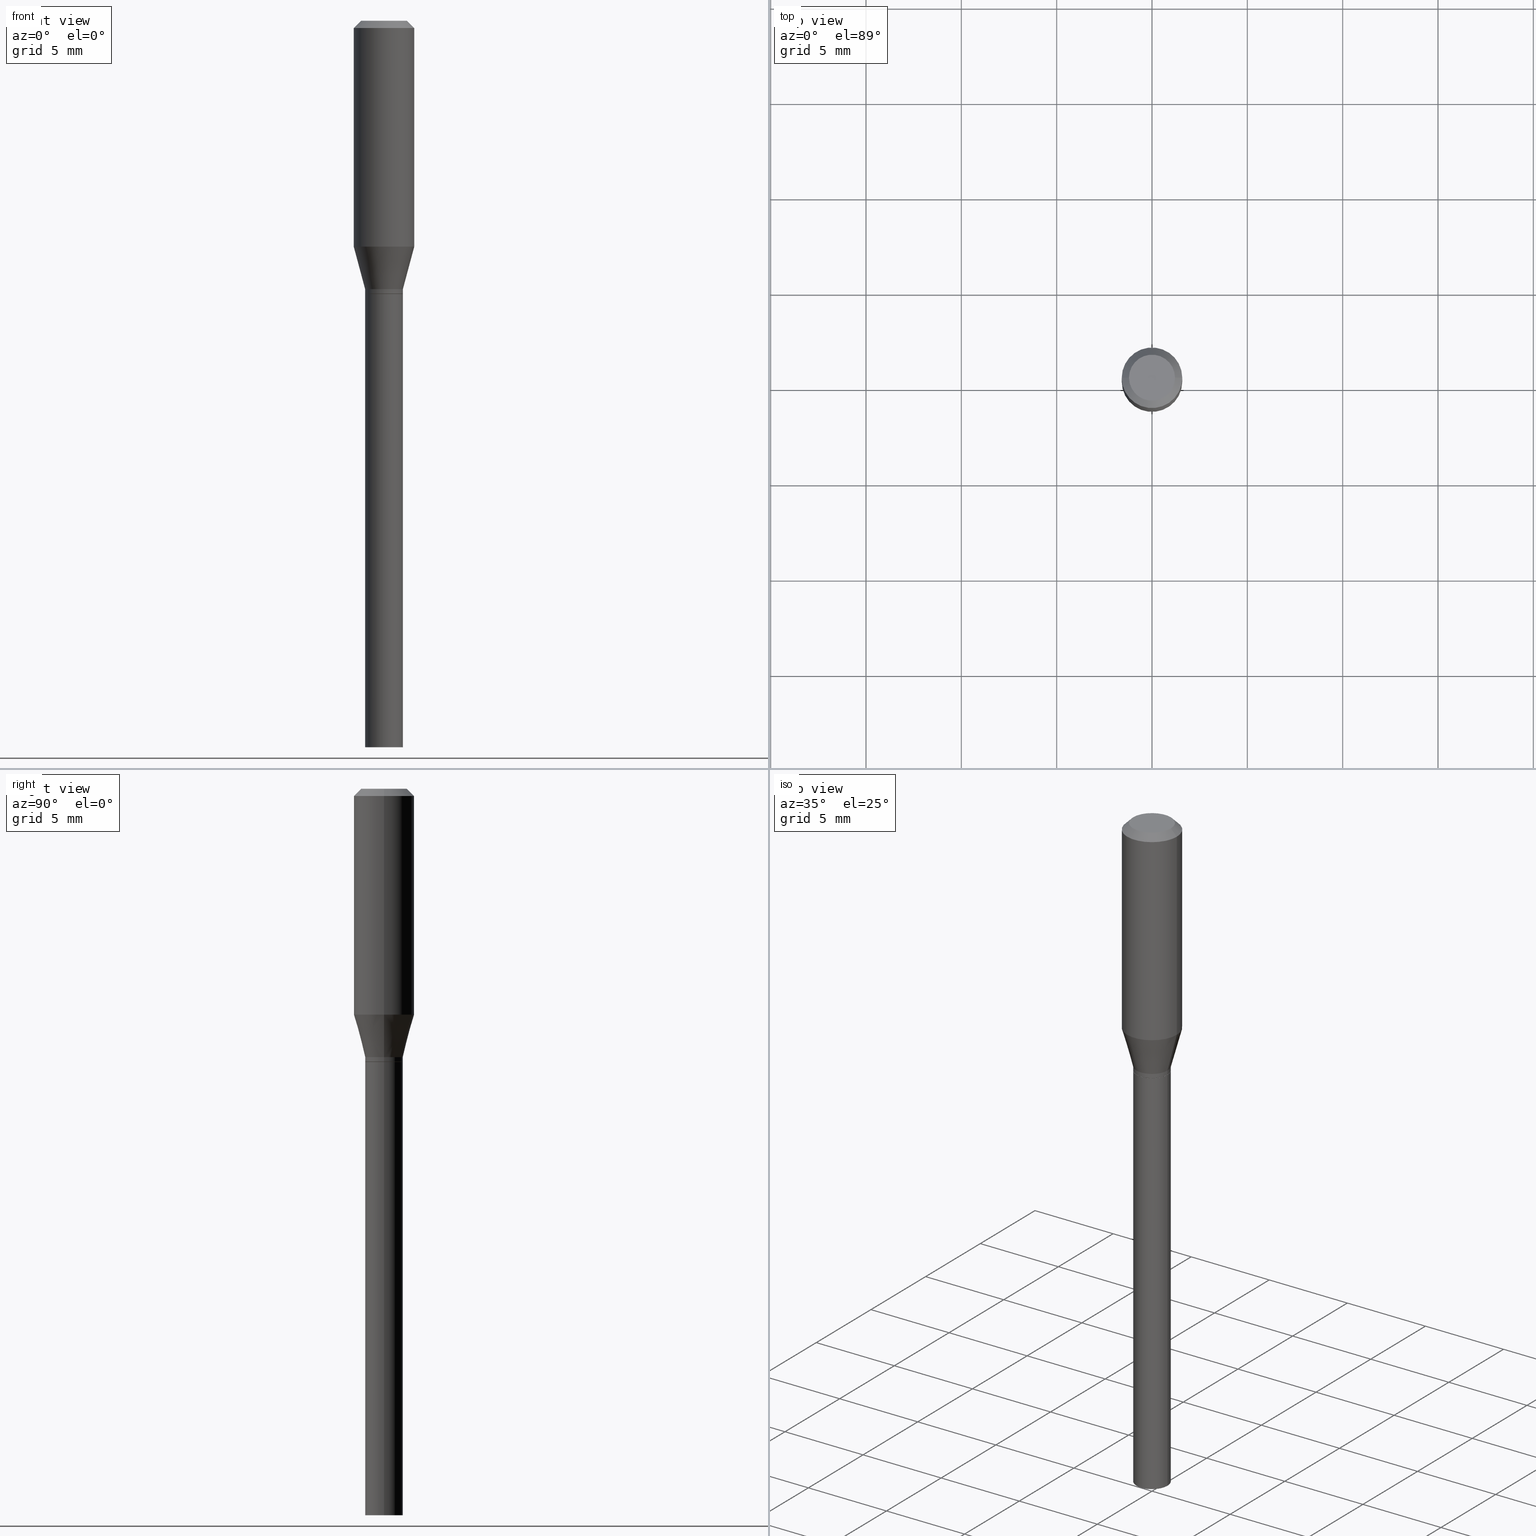
[diagram: canonical four-view strip — front | top / right | iso, engineering-drawing reading convention]
A machine part, canonical four-view strip (front | top / right | iso — engineering-drawing reading convention). The complete STEP part file that produces these views, byte-faithful:
ISO-10303-21;
HEADER;
FILE_DESCRIPTION (( 'STEP AP203' ),
    '1' );
FILE_NAME ('02710.STEP',
    '2024-03-18T21:34:10',
    ( '' ),
    ( '' ),
    'SwSTEP 2.0',
    'SolidWorks 2023',
    '' );
FILE_SCHEMA (( 'CONFIG_CONTROL_DESIGN' ));
ENDSEC;

DATA;
#1 = DIRECTION ( 'NONE',  ( -1.000000000000000000, 6.982962677686265922E-15, -4.876176775795935793E-29 ) ) ;
#2 = CIRCLE ( 'NONE', #55, 0.04749999999999999362 ) ;
#3 = ADVANCED_FACE ( 'NONE', ( #273 ), #358, .T. ) ;
#4 = ORIENTED_EDGE ( 'NONE', *, *, #140, .T. ) ;
#5 = PLANE ( 'NONE',  #43 ) ;
#6 = PERSON_AND_ORGANIZATION_ROLE ( 'creator' ) ;
#7 = DIRECTION ( 'NONE',  ( 1.000000000000000000, -6.982962677686270655E-15, 0.000000000000000000 ) ) ;
#8 = ORIENTED_EDGE ( 'NONE', *, *, #204, .T. ) ;
#9 = CARTESIAN_POINT ( 'NONE',  ( 1.379244406688416899E-29, -1.969195475107534123E-15, -0.5639999999999999458 ) ) ;
#10 = PERSON_AND_ORGANIZATION ( #408, #256 ) ;
#11 = CC_DESIGN_DATE_AND_TIME_ASSIGNMENT ( #180, #301, ( #324 ) ) ;
#12 = ORIENTED_EDGE ( 'NONE', *, *, #271, .F. ) ;
#13 = CIRCLE ( 'NONE', #338, 0.06250000000000000000 ) ;
#14 = CIRCLE ( 'NONE', #347, 0.06250000000000000000 ) ;
#15 = APPROVAL_DATE_TIME ( #46, #238 ) ;
#16 = DIRECTION ( 'NONE',  ( 1.000000000000000000, -6.982962677686266711E-15, 4.876176775795935793E-29 ) ) ;
#17 = CC_DESIGN_SECURITY_CLASSIFICATION ( #38, ( #168 ) ) ;
#18 = CARTESIAN_POINT ( 'NONE',  ( 0.06250000000000000000, -4.811533449433679005E-16, -0.01499999999999999944 ) ) ;
#19 = VERTEX_POINT ( 'NONE', #211 ) ;
#20 = CARTESIAN_POINT ( 'NONE',  ( -0.03899999999999999994, -3.326097074739686831E-15, -1.500000000000000222 ) ) ;
#21 = DIRECTION ( 'NONE',  ( -2.445468806185136597E-29, 3.491481338843145583E-15, 1.000000000000000000 ) ) ;
#22 = DIRECTION ( 'NONE',  ( 1.000000000000000000, -6.982962677686266711E-15, 0.000000000000000000 ) ) ;
#23 = DESIGN_CONTEXT ( 'detailed design', #161, 'design' ) ;
#24 = PERSON_AND_ORGANIZATION ( #408, #256 ) ;
#25 = ORIENTED_EDGE ( 'NONE', *, *, #454, .F. ) ;
#26 = AXIS2_PLACEMENT_3D ( 'NONE', #40, #306, #16 ) ;
#27 = CONICAL_SURFACE ( 'NONE', #393, 0.03849999999999999256, 0.7853981633976103716 ) ;
#28 = CC_DESIGN_APPROVAL ( #165, ( #38 ) ) ;
#29 = EDGE_LOOP ( 'NONE', ( #240, #182, #103, #371 ) ) ;
#30 = APPLICATION_CONTEXT ( 'configuration controlled 3d designs of mechanical parts and assemblies' ) ;
#31 = PLANE ( 'NONE',  #158 ) ;
#32 = ORIENTED_EDGE ( 'NONE', *, *, #245, .F. ) ;
#33 = ORIENTED_EDGE ( 'NONE', *, *, #247, .T. ) ;
#34 = CIRCLE ( 'NONE', #287, 0.03900000000000005546 ) ;
#35 = AXIS2_PLACEMENT_3D ( 'NONE', #425, #389, #394 ) ;
#36 = MANIFOLD_SOLID_BREP ( 'Body-Move/Copy2[1]', #457 ) ;
#37 = EDGE_LOOP ( 'NONE', ( #233, #244, #45, #12 ) ) ;
#38 = SECURITY_CLASSIFICATION ( '', '', #144 ) ;
#39 = CARTESIAN_POINT ( 'NONE',  ( 0.03899999999999990974, -2.206616206148866497E-15, -0.5540000000000000480 ) ) ;
#40 = CARTESIAN_POINT ( 'NONE',  ( 0.000000000000000000, 0.000000000000000000, 0.000000000000000000 ) ) ;
#41 = CARTESIAN_POINT ( 'NONE',  ( -0.03900000000000005546, -1.690338067491673498E-15, -0.5635000000000001119 ) ) ;
#42 = ADVANCED_FACE ( 'NONE', ( #357 ), #5, .F. ) ;
#43 = AXIS2_PLACEMENT_3D ( 'NONE', #143, #173, #114 ) ;
#44 = CIRCLE ( 'NONE', #129, 0.03899999999999999994 ) ;
#45 = ORIENTED_EDGE ( 'NONE', *, *, #274, .F. ) ;
#46 = DATE_AND_TIME ( #51, #414 ) ;
#47 = ORIENTED_EDGE ( 'NONE', *, *, #49, .F. ) ;
#48 = DIRECTION ( 'NONE',  ( 0.000000000000000000, 0.000000000000000000, 1.000000000000000000 ) ) ;
#49 = EDGE_CURVE ( 'NONE', #292, #149, #423, .T. ) ;
#50 = VERTEX_POINT ( 'NONE', #325 ) ;
#51 = CALENDAR_DATE ( 2024, 18, 3 ) ;
#52 = CYLINDRICAL_SURFACE ( 'NONE', #281, 0.03899999999999999994 ) ;
#53 = CARTESIAN_POINT ( 'NONE',  ( 0.03899999999999997913, -2.723355444297642696E-16, 1.901708942560413880E-30 ) ) ;
#54 = ORIENTED_EDGE ( 'NONE', *, *, #247, .F. ) ;
#55 = AXIS2_PLACEMENT_3D ( 'NONE', #333, #336, #391 ) ;
#56 = APPROVAL_STATUS ( 'not_yet_approved' ) ;
#57 = LINE ( 'NONE', #266, #142 ) ;
#58 = ORIENTED_EDGE ( 'NONE', *, *, #459, .F. ) ;
#59 = ORIENTED_EDGE ( 'NONE', *, *, #245, .T. ) ;
#60 = CALENDAR_DATE ( 2024, 18, 3 ) ;
#61 = ORIENTED_EDGE ( 'NONE', *, *, #390, .T. ) ;
#62 = DIRECTION ( 'NONE',  ( -2.445468806185136597E-29, 3.491481338843145583E-15, 1.000000000000000000 ) ) ;
#63 = CYLINDRICAL_SURFACE ( 'NONE', #226, 0.03899999999999997913 ) ;
#64 = EDGE_CURVE ( 'NONE', #133, #278, #98, .T. ) ;
#65 = DATE_AND_TIME ( #101, #465 ) ;
#66 = VECTOR ( 'NONE', #409, 39.37007874015748143 ) ;
#67 = DIRECTION ( 'NONE',  ( -2.445468806185136597E-29, 3.491481338843145583E-15, 1.000000000000000000 ) ) ;
#68 = CC_DESIGN_APPROVAL ( #238, ( #324 ) ) ;
#69 = DIRECTION ( 'NONE',  ( -2.438088387897960049E-29, 3.491481338843145188E-15, 1.000000000000000000 ) ) ;
#70 = EDGE_CURVE ( 'NONE', #100, #153, #107, .T. ) ;
#71 = EDGE_LOOP ( 'NONE', ( #218, #343, #362, #47 ) ) ;
#72 = ORIENTED_EDGE ( 'NONE', *, *, #140, .F. ) ;
#73 = DIRECTION ( 'NONE',  ( -2.445468806185136877E-29, 3.491481338843145188E-15, 1.000000000000000000 ) ) ;
#74 = CARTESIAN_POINT ( 'NONE',  ( 1.379244406688416899E-29, -1.969195475107534123E-15, -0.5639999999999999458 ) ) ;
#75 = VECTOR ( 'NONE', #445, 39.37007874015748143 ) ;
#76 = ADVANCED_FACE ( 'NONE', ( #460 ), #216, .T. ) ;
#77 = CARTESIAN_POINT ( 'NONE',  ( 3.668203209277704895E-29, -5.237222008264718177E-15, -1.500000000000000222 ) ) ;
#78 = ADVANCED_FACE ( 'NONE', ( #242 ), #355, .T. ) ;
#79 = CARTESIAN_POINT ( 'NONE',  ( 1.354789718626565634E-29, -1.934280661719102868E-15, -0.5540000000000000480 ) ) ;
#80 = DIRECTION ( 'NONE',  ( -2.445468806185136597E-29, 3.491481338843145583E-15, 1.000000000000000000 ) ) ;
#81 = VERTEX_POINT ( 'NONE', #20 ) ;
#82 = ORIENTED_EDGE ( 'NONE', *, *, #243, .F. ) ;
#83 = COORDINATED_UNIVERSAL_TIME_OFFSET ( 5, 0, .BEHIND. ) ;
#84 = EDGE_LOOP ( 'NONE', ( #203, #59, #222, #58 ) ) ;
#85 = CARTESIAN_POINT ( 'NONE',  ( 1.378021672285324658E-29, -1.967449734438113014E-15, -0.5635000000000001119 ) ) ;
#86 = PERSON_AND_ORGANIZATION ( #408, #256 ) ;
#87 = CARTESIAN_POINT ( 'NONE',  ( 0.000000000000000000, 0.000000000000000000, 0.000000000000000000 ) ) ;
#88 = ORIENTED_EDGE ( 'NONE', *, *, #122, .F. ) ;
#89 = APPROVAL_PERSON_ORGANIZATION ( #10, #238, #118 ) ;
#90 = CALENDAR_DATE ( 2024, 18, 3 ) ;
#91 = FACE_OUTER_BOUND ( 'NONE', #29, .T. ) ;
#92 = DIRECTION ( 'NONE',  ( -2.445468806185136597E-29, 3.491481338843145583E-15, 1.000000000000000000 ) ) ;
#93 = ORIENTED_EDGE ( 'NONE', *, *, #390, .F. ) ;
#94 = ORIENTED_EDGE ( 'NONE', *, *, #346, .T. ) ;
#95 = PERSON_AND_ORGANIZATION_ROLE ( 'design_owner' ) ;
#96 = PRODUCT_RELATED_PRODUCT_CATEGORY ( 'detail', '', ( #167 ) ) ;
#97 = ADVANCED_FACE ( 'NONE', ( #276 ), #63, .T. ) ;
#98 = CIRCLE ( 'NONE', #351, 0.03849999999999999256 ) ;
#99 = VECTOR ( 'NONE', #327, 39.37007874015748143 ) ;
#100 = VERTEX_POINT ( 'NONE', #196 ) ;
#101 = CALENDAR_DATE ( 2024, 18, 3 ) ;
#102 = CARTESIAN_POINT ( 'NONE',  ( -0.03899999999999990974, -1.420573190755517475E-15, -0.5540000000000000480 ) ) ;
#103 = ORIENTED_EDGE ( 'NONE', *, *, #122, .T. ) ;
#104 = EDGE_CURVE ( 'NONE', #137, #297, #34, .T. ) ;
#105 = DIRECTION ( 'NONE',  ( -1.000000000000000000, 6.982962677686266711E-15, 0.000000000000000000 ) ) ;
#106 = ORIENTED_EDGE ( 'NONE', *, *, #337, .F. ) ;
#107 = LINE ( 'NONE', #396, #135 ) ;
#108 = DIRECTION ( 'NONE',  ( -2.445468806185136597E-29, 3.491481338843145583E-15, 1.000000000000000000 ) ) ;
#109 = CARTESIAN_POINT ( 'NONE',  ( -0.06250000000000000000, -3.961301984854776856E-16, -0.01499999999999999944 ) ) ;
#110 = CONICAL_SURFACE ( 'NONE', #373, 0.03849999999999999256, 0.7853981633976103716 ) ;
#111 = DIRECTION ( 'NONE',  ( 1.000000000000000000, -6.982962677686266711E-15, 0.000000000000000000 ) ) ;
#112 = DIRECTION ( 'NONE',  ( -2.445468806185136597E-29, 3.491481338843145583E-15, 1.000000000000000000 ) ) ;
#113 = CARTESIAN_POINT ( 'NONE',  ( -0.03899999999999999994, 2.771116669464390721E-16, -1.918384685199413078E-30 ) ) ;
#114 = DIRECTION ( 'NONE',  ( -1.000000000000000000, 6.982962677686265922E-15, -4.876176775795935793E-29 ) ) ;
#115 = FACE_OUTER_BOUND ( 'NONE', #198, .T. ) ;
#116 = DIRECTION ( 'NONE',  ( 1.000000000000000000, -6.982962677686266711E-15, 0.000000000000000000 ) ) ;
#117 = ORIENTED_EDGE ( 'NONE', *, *, #285, .T. ) ;
#118 = APPROVAL_ROLE ( '' ) ;
#119 = CARTESIAN_POINT ( 'NONE',  ( 0.03899999999999999994, -2.241531019537298935E-15, -0.5640000000000000568 ) ) ;
#120 = AXIS2_PLACEMENT_3D ( 'NONE', #359, #461, #105 ) ;
#121 = VECTOR ( 'NONE', #232, 39.37007874015748143 ) ;
#122 = EDGE_CURVE ( 'NONE', #464, #401, #187, .T. ) ;
#123 = CARTESIAN_POINT ( 'NONE',  ( 0.06250000000000000000, -4.364351673553916694E-16, 3.047610484872459871E-30 ) ) ;
#124 = CARTESIAN_POINT ( 'NONE',  ( 0.03899999999999999994, -5.509557552694482989E-15, -1.500000000000000222 ) ) ;
#125 = CARTESIAN_POINT ( 'NONE',  ( 1.378021672285324658E-29, -1.967449734438113014E-15, -0.5635000000000001119 ) ) ;
#126 = LINE ( 'NONE', #123, #75 ) ;
#127 = VERTEX_POINT ( 'NONE', #330 ) ;
#128 = CARTESIAN_POINT ( 'NONE',  ( 0.03899999999999999994, -2.723355444297643682E-16, 1.901708942560414931E-30 ) ) ;
#129 = AXIS2_PLACEMENT_3D ( 'NONE', #421, #195, #272 ) ;
#130 = APPLICATION_PROTOCOL_DEFINITION ( 'international standard', 'config_control_design', 1994, #30 ) ;
#131 = EDGE_LOOP ( 'NONE', ( #368, #61 ) ) ;
#132 = CARTESIAN_POINT ( 'NONE',  ( 1.379244406688417180E-29, -1.969195475107534123E-15, -0.5640000000000000568 ) ) ;
#133 = VERTEX_POINT ( 'NONE', #308 ) ;
#134 = COORDINATED_UNIVERSAL_TIME_OFFSET ( 5, 0, .BEHIND. ) ;
#135 = VECTOR ( 'NONE', #73, 39.37007874015748143 ) ;
#136 = ADVANCED_FACE ( 'NONE', ( #91 ), #262, .T. ) ;
#137 = VERTEX_POINT ( 'NONE', #41 ) ;
#138 = VECTOR ( 'NONE', #174, 39.37007874015748854 ) ;
#139 = AXIS2_PLACEMENT_3D ( 'NONE', #87, #407, #296 ) ;
#140 = EDGE_CURVE ( 'NONE', #149, #127, #141, .T. ) ;
#141 = LINE ( 'NONE', #39, #138 ) ;
#142 = VECTOR ( 'NONE', #152, 39.37007874015748143 ) ;
#143 = CARTESIAN_POINT ( 'NONE',  ( 2.723355444297781239E-16, 0.03899999999999802236, -0.5640000000000001679 ) ) ;
#144 = SECURITY_CLASSIFICATION_LEVEL ( 'unclassified' ) ;
#145 = ORIENTED_EDGE ( 'NONE', *, *, #428, .F. ) ;
#146 = APPROVAL_STATUS ( 'not_yet_approved' ) ;
#147 = LINE ( 'NONE', #367, #99 ) ;
#148 = VECTOR ( 'NONE', #186, 39.37007874015748143 ) ;
#149 = VERTEX_POINT ( 'NONE', #213 ) ;
#150 =( CONVERSION_BASED_UNIT ( 'INCH', #439 ) LENGTH_UNIT ( ) NAMED_UNIT ( #293 ) );
#151 = DIRECTION ( 'NONE',  ( -2.445468806185136597E-29, 3.491481338843145583E-15, 1.000000000000000000 ) ) ;
#152 = DIRECTION ( 'NONE',  ( -0.7071067811866621478, 7.493145998870769101E-15, 0.7071067811864328867 ) ) ;
#153 = VERTEX_POINT ( 'NONE', #109 ) ;
#154 = CARTESIAN_POINT ( 'NONE',  ( 0.06250000000000000000, -4.888073874380388472E-16, -0.01499999999999999944 ) ) ;
#155 = DIRECTION ( 'NONE',  ( -2.445468806185136597E-29, 3.491481338843145583E-15, 1.000000000000000000 ) ) ;
#156 = COORDINATED_UNIVERSAL_TIME_OFFSET ( 5, 0, .BEHIND. ) ;
#157 = EDGE_LOOP ( 'NONE', ( #427, #269, #219, #72 ) ) ;
#158 = AXIS2_PLACEMENT_3D ( 'NONE', #132, #239, #235 ) ;
#159 = APPROVAL_ROLE ( '' ) ;
#160 = CC_DESIGN_PERSON_AND_ORGANIZATION_ASSIGNMENT ( #86, #303, ( #324 ) ) ;
#161 = APPLICATION_CONTEXT ( 'configuration controlled 3d designs of mechanical parts and assemblies' ) ;
#162 = LINE ( 'NONE', #277, #424 ) ;
#163 = EDGE_CURVE ( 'NONE', #81, #464, #208, .T. ) ;
#164 = AXIS2_PLACEMENT_3D ( 'NONE', #190, #92, #299 ) ;
#165 = APPROVAL ( #344, 'UNSPECIFIED' ) ;
#166 = ORIENTED_EDGE ( 'NONE', *, *, #318, .F. ) ;
#167 = PRODUCT ( '02710', '02710', '', ( #416 ) ) ;
#168 = PRODUCT_DEFINITION_FORMATION_WITH_SPECIFIED_SOURCE ( 'ANY', '', #167, .NOT_KNOWN. ) ;
#169 = ADVANCED_FACE ( 'NONE', ( #356 ), #171, .F. ) ;
#170 = APPROVAL_PERSON_ORGANIZATION ( #234, #165, #159 ) ;
#171 = PLANE ( 'NONE',  #402 ) ;
#172 = ADVANCED_FACE ( 'NONE', ( #250 ), #315, .T. ) ;
#173 = DIRECTION ( 'NONE',  ( 2.438088387897960049E-29, -3.491481338843145188E-15, -1.000000000000000000 ) ) ;
#174 = DIRECTION ( 'NONE',  ( 0.2588190451025211836, 1.565188264969622559E-15, 0.9659258262890679791 ) ) ;
#175 = DIRECTION ( 'NONE',  ( -2.445468806185136597E-29, 3.491481338843145583E-15, 1.000000000000000000 ) ) ;
#176 = AXIS2_PLACEMENT_3D ( 'NONE', #417, #112, #249 ) ;
#177 = VECTOR ( 'NONE', #282, 39.37007874015748143 ) ;
#178 = CC_DESIGN_PERSON_AND_ORGANIZATION_ASSIGNMENT ( #329, #95, ( #167 ) ) ;
#179 = ORIENTED_EDGE ( 'NONE', *, *, #64, .F. ) ;
#180 = DATE_AND_TIME ( #60, #200 ) ;
#181 = EDGE_CURVE ( 'NONE', #137, #292, #206, .T. ) ;
#182 = ORIENTED_EDGE ( 'NONE', *, *, #163, .T. ) ;
#183 = DIRECTION ( 'NONE',  ( 1.000000000000000000, 0.000000000000000000, 0.000000000000000000 ) ) ;
#184 = ORIENTED_EDGE ( 'NONE', *, *, #438, .T. ) ;
#185 = EDGE_LOOP ( 'NONE', ( #302, #254, #8, #199 ) ) ;
#186 = DIRECTION ( 'NONE',  ( 0.7071067811866621478, -2.468850131083457312E-15, 0.7071067811864328867 ) ) ;
#187 = LINE ( 'NONE', #128, #267 ) ;
#188 = APPROVAL ( #56, 'UNSPECIFIED' ) ;
#189 = EDGE_CURVE ( 'NONE', #297, #137, #383, .T. ) ;
#190 = CARTESIAN_POINT ( 'NONE',  ( 1.354789718626565634E-29, -1.934280661719102868E-15, -0.5540000000000000480 ) ) ;
#191 = CLOSED_SHELL ( 'NONE', ( #97, #436, #430, #448, #3, #76, #257, #172, #169, #294, #375, #78 ) ) ;
#192 = CIRCLE ( 'NONE', #331, 0.06250000000000000000 ) ;
#193 = VERTEX_POINT ( 'NONE', #154 ) ;
#194 = PERSON_AND_ORGANIZATION ( #408, #256 ) ;
#195 = DIRECTION ( 'NONE',  ( -2.445468806185136597E-29, 3.491481338843145583E-15, 1.000000000000000000 ) ) ;
#196 = CARTESIAN_POINT ( 'NONE',  ( -0.06250000000000000000, -1.183977386738370809E-15, -0.4662968060221312494 ) ) ;
#197 = EDGE_CURVE ( 'NONE', #193, #153, #13, .T. ) ;
#198 = EDGE_LOOP ( 'NONE', ( #117, #261, #305, #431 ) ) ;
#199 = ORIENTED_EDGE ( 'NONE', *, *, #410, .F. ) ;
#200 = LOCAL_TIME ( 17, 34, 10.00000000000000000, #224 ) ;
#201 = FACE_OUTER_BOUND ( 'NONE', #284, .T. ) ;
#202 = DIRECTION ( 'NONE',  ( 1.000000000000000000, -6.982962677686265133E-15, 0.000000000000000000 ) ) ;
#203 = ORIENTED_EDGE ( 'NONE', *, *, #64, .T. ) ;
#204 = EDGE_CURVE ( 'NONE', #127, #193, #126, .T. ) ;
#205 = FACE_OUTER_BOUND ( 'NONE', #84, .T. ) ;
#206 = LINE ( 'NONE', #326, #66 ) ;
#207 = EDGE_LOOP ( 'NONE', ( #166, #349, #4, #106 ) ) ;
#208 = CIRCLE ( 'NONE', #280, 0.03899999999999999994 ) ;
#209 = DIRECTION ( 'NONE',  ( 1.000000000000000000, -6.982962677686266711E-15, 4.876176775795935793E-29 ) ) ;
#210 = DIRECTION ( 'NONE',  ( -2.445468806185136597E-29, 3.491481338843145583E-15, 1.000000000000000000 ) ) ;
#211 = CARTESIAN_POINT ( 'NONE',  ( 0.04749999999999999362, -4.035134999187569255E-16, 5.238176471756179596E-16 ) ) ;
#212 = DIRECTION ( 'NONE',  ( -2.445468806185136597E-29, 3.491481338843145583E-15, 1.000000000000000000 ) ) ;
#213 = CARTESIAN_POINT ( 'NONE',  ( 0.03899999999999990974, -2.206616206148866497E-15, -0.5540000000000000480 ) ) ;
#214 = DIRECTION ( 'NONE',  ( -2.445468806185136597E-29, 3.491481338843145583E-15, 1.000000000000000000 ) ) ;
#215 = DIRECTION ( 'NONE',  ( 1.000000000000000000, -6.982962677686267499E-15, 4.852736867747366768E-29 ) ) ;
#216 = CONICAL_SURFACE ( 'NONE', #246, 0.03899999999999990974, 0.2617993877991499074 ) ;
#217 = CIRCLE ( 'NONE', #360, 0.04749999999999999362 ) ;
#218 = ORIENTED_EDGE ( 'NONE', *, *, #181, .F. ) ;
#219 = ORIENTED_EDGE ( 'NONE', *, *, #285, .F. ) ;
#220 = EDGE_LOOP ( 'NONE', ( #179, #25 ) ) ;
#221 = DIRECTION ( 'NONE',  ( 1.000000000000000000, -6.982962677686265133E-15, 0.000000000000000000 ) ) ;
#222 = ORIENTED_EDGE ( 'NONE', *, *, #189, .F. ) ;
#223 = DIRECTION ( 'NONE',  ( -2.445468806185136597E-29, 3.491481338843145583E-15, 1.000000000000000000 ) ) ;
#224 = COORDINATED_UNIVERSAL_TIME_OFFSET ( 5, 0, .BEHIND. ) ;
#225 = CARTESIAN_POINT ( 'NONE',  ( 1.140314293550883428E-29, -1.628066596588433426E-15, -0.4662968060221312494 ) ) ;
#226 = AXIS2_PLACEMENT_3D ( 'NONE', #270, #67, #387 ) ;
#227 = CIRCLE ( 'NONE', #164, 0.03899999999999990974 ) ;
#228 = ORIENTED_EDGE ( 'NONE', *, *, #243, .T. ) ;
#229 = DIRECTION ( 'NONE',  ( 1.000000000000000000, -6.982962677686273810E-15, 0.000000000000000000 ) ) ;
#230 = DATE_AND_TIME ( #90, #435 ) ;
#231 = CARTESIAN_POINT ( 'NONE',  ( 0.000000000000000000, 0.000000000000000000, 0.000000000000000000 ) ) ;
#232 = DIRECTION ( 'NONE',  ( -2.445468806185136877E-29, 3.491481338843145188E-15, 1.000000000000000000 ) ) ;
#233 = ORIENTED_EDGE ( 'NONE', *, *, #189, .T. ) ;
#234 = PERSON_AND_ORGANIZATION ( #408, #256 ) ;
#235 = DIRECTION ( 'NONE',  ( 1.000000000000000000, -6.982962677686265922E-15, 4.876176775795935793E-29 ) ) ;
#236 = AXIS2_PLACEMENT_3D ( 'NONE', #231, #354, #289 ) ;
#237 = CC_DESIGN_APPROVAL ( #188, ( #168 ) ) ;
#238 = APPROVAL ( #146, 'UNSPECIFIED' ) ;
#239 = DIRECTION ( 'NONE',  ( -2.438088387897960049E-29, 3.491481338843145188E-15, 1.000000000000000000 ) ) ;
#240 = ORIENTED_EDGE ( 'NONE', *, *, #334, .F. ) ;
#241 = AXIS2_PLACEMENT_3D ( 'NONE', #411, #21, #7 ) ;
#242 = FACE_OUTER_BOUND ( 'NONE', #71, .T. ) ;
#243 = EDGE_CURVE ( 'NONE', #19, #193, #437, .T. ) ;
#244 = ORIENTED_EDGE ( 'NONE', *, *, #181, .T. ) ;
#245 = EDGE_CURVE ( 'NONE', #278, #137, #57, .T. ) ;
#246 = AXIS2_PLACEMENT_3D ( 'NONE', #462, #456, #422 ) ;
#247 = EDGE_CURVE ( 'NONE', #50, #153, #147, .T. ) ;
#248 = CIRCLE ( 'NONE', #283, 0.06250000000000000000 ) ;
#249 = DIRECTION ( 'NONE',  ( 1.000000000000000000, -6.982962677686268288E-15, 0.000000000000000000 ) ) ;
#250 = FACE_OUTER_BOUND ( 'NONE', #310, .T. ) ;
#251 = CARTESIAN_POINT ( 'NONE',  ( 1.140314293550883428E-29, -1.628066596588433426E-15, -0.4662968060221312494 ) ) ;
#252 = CARTESIAN_POINT ( 'NONE',  ( 1.379244406688416899E-29, -1.969195475107534123E-15, -0.5639999999999999458 ) ) ;
#253 = DIRECTION ( 'NONE',  ( 1.000000000000000000, -6.982962677686265133E-15, 0.000000000000000000 ) ) ;
#254 = ORIENTED_EDGE ( 'NONE', *, *, #337, .T. ) ;
#255 = PERSON_AND_ORGANIZATION_ROLE ( 'classification_officer' ) ;
#256 = ORGANIZATION ( 'UNSPECIFIED', 'UNSPECIFIED', '' ) ;
#257 = ADVANCED_FACE ( 'NONE', ( #441 ), #370, .T. ) ;
#258 = CARTESIAN_POINT ( 'NONE',  ( 0.000000000000000000, 0.000000000000000000, 0.000000000000000000 ) ) ;
#259 = FACE_OUTER_BOUND ( 'NONE', #279, .T. ) ;
#260 = DIRECTION ( 'NONE',  ( 0.7071067811865352493, -7.319954787623213447E-15, -0.7071067811865597852 ) ) ;
#261 = ORIENTED_EDGE ( 'NONE', *, *, #70, .T. ) ;
#262 = CYLINDRICAL_SURFACE ( 'NONE', #236, 0.03899999999999999994 ) ;
#263 = DIRECTION ( 'NONE',  ( -2.445468806185136597E-29, 3.491481338843145583E-15, 1.000000000000000000 ) ) ;
#264 = LINE ( 'NONE', #53, #121 ) ;
#265 = DIRECTION ( 'NONE',  ( -2.445468806185136877E-29, 3.491481338843145188E-15, 1.000000000000000000 ) ) ;
#266 = CARTESIAN_POINT ( 'NONE',  ( -0.03849999999999999256, -1.695636521839895505E-15, -0.5639999999999999458 ) ) ;
#267 = VECTOR ( 'NONE', #265, 39.37007874015748143 ) ;
#268 = CIRCLE ( 'NONE', #241, 0.03899999999999999994 ) ;
#269 = ORIENTED_EDGE ( 'NONE', *, *, #318, .T. ) ;
#270 = CARTESIAN_POINT ( 'NONE',  ( 0.000000000000000000, 0.000000000000000000, 0.000000000000000000 ) ) ;
#271 = EDGE_CURVE ( 'NONE', #297, #149, #264, .T. ) ;
#272 = DIRECTION ( 'NONE',  ( 1.000000000000000000, -6.982962677686270655E-15, 0.000000000000000000 ) ) ;
#273 = FACE_OUTER_BOUND ( 'NONE', #157, .T. ) ;
#274 = EDGE_CURVE ( 'NONE', #149, #292, #227, .T. ) ;
#275 = DATE_AND_TIME ( #432, #295 ) ;
#276 = FACE_OUTER_BOUND ( 'NONE', #37, .T. ) ;
#277 = CARTESIAN_POINT ( 'NONE',  ( -0.03899999999999990974, -1.657168994772664338E-15, -0.5540000000000000480 ) ) ;
#278 = VERTEX_POINT ( 'NONE', #412 ) ;
#279 = EDGE_LOOP ( 'NONE', ( #345, #452, #314, #88 ) ) ;
#280 = AXIS2_PLACEMENT_3D ( 'NONE', #77, #210, #399 ) ;
#281 = AXIS2_PLACEMENT_3D ( 'NONE', #418, #377, #450 ) ;
#282 = DIRECTION ( 'NONE',  ( -2.445468806185136877E-29, 3.491481338843145188E-15, 1.000000000000000000 ) ) ;
#283 = AXIS2_PLACEMENT_3D ( 'NONE', #365, #151, #440 ) ;
#284 = EDGE_LOOP ( 'NONE', ( #93, #228, #415, #54 ) ) ;
#285 = EDGE_CURVE ( 'NONE', #127, #100, #14, .T. ) ;
#286 = EDGE_CURVE ( 'NONE', #464, #81, #384, .T. ) ;
#287 = AXIS2_PLACEMENT_3D ( 'NONE', #125, #155, #444 ) ;
#288 =( GEOMETRIC_REPRESENTATION_CONTEXT ( 3 ) GLOBAL_UNCERTAINTY_ASSIGNED_CONTEXT ( ( #451 ) ) GLOBAL_UNIT_ASSIGNED_CONTEXT ( ( #150, #332, #364 ) ) REPRESENTATION_CONTEXT ( 'NONE', 'WORKASPACE' ) );
#289 = DIRECTION ( 'NONE',  ( 1.000000000000000000, -6.982962677686265922E-15, 4.876176775795935793E-29 ) ) ;
#290 = DIRECTION ( 'NONE',  ( 1.000000000000000000, -6.982962677686265133E-15, 0.000000000000000000 ) ) ;
#291 = EDGE_LOOP ( 'NONE', ( #94, #184 ) ) ;
#292 = VERTEX_POINT ( 'NONE', #102 ) ;
#293 = DIMENSIONAL_EXPONENTS ( 1.000000000000000000, 0.000000000000000000, 0.000000000000000000, 0.000000000000000000, 0.000000000000000000, 0.000000000000000000, 0.000000000000000000 ) ;
#294 = ADVANCED_FACE ( 'NONE', ( #309 ), #31, .F. ) ;
#295 = LOCAL_TIME ( 17, 34, 10.00000000000000000, #156 ) ;
#296 = DIRECTION ( 'NONE',  ( 1.000000000000000000, -6.982962677686266711E-15, 4.876176775795935793E-29 ) ) ;
#297 = VERTEX_POINT ( 'NONE', #385 ) ;
#298 = CARTESIAN_POINT ( 'NONE',  ( 0.03849999999999999256, -2.238039538198455139E-15, -0.5639999999999999458 ) ) ;
#299 = DIRECTION ( 'NONE',  ( 1.000000000000000000, -6.982962677686268288E-15, 0.000000000000000000 ) ) ;
#300 = CARTESIAN_POINT ( 'NONE',  ( 3.668203209277705088E-31, -5.237222008264718399E-17, -0.01499999999999999944 ) ) ;
#301 = DATE_TIME_ROLE ( 'creation_date' ) ;
#302 = ORIENTED_EDGE ( 'NONE', *, *, #70, .F. ) ;
#303 = PERSON_AND_ORGANIZATION_ROLE ( 'creator' ) ;
#304 = AXIS2_PLACEMENT_3D ( 'NONE', #74, #313, #221 ) ;
#305 = ORIENTED_EDGE ( 'NONE', *, *, #197, .F. ) ;
#306 = DIRECTION ( 'NONE',  ( -2.445468806185136597E-29, 3.491481338843145583E-15, 1.000000000000000000 ) ) ;
#307 = VERTEX_POINT ( 'NONE', #388 ) ;
#308 = CARTESIAN_POINT ( 'NONE',  ( 0.03849999999999999256, -2.238039538198455139E-15, -0.5639999999999999458 ) ) ;
#309 = FACE_OUTER_BOUND ( 'NONE', #220, .T. ) ;
#310 = EDGE_LOOP ( 'NONE', ( #82, #145, #33, #369 ) ) ;
#311 = CARTESIAN_POINT ( 'NONE',  ( 0.000000000000000000, 0.000000000000000000, 0.000000000000000000 ) ) ;
#312 = DIRECTION ( 'NONE',  ( -2.445468806185136597E-29, 3.491481338843145583E-15, 1.000000000000000000 ) ) ;
#313 = DIRECTION ( 'NONE',  ( -2.445468806185136597E-29, 3.491481338843145583E-15, 1.000000000000000000 ) ) ;
#314 = ORIENTED_EDGE ( 'NONE', *, *, #346, .F. ) ;
#315 = CONICAL_SURFACE ( 'NONE', #120, 0.06250000000000000000, 0.7853981633974309595 ) ;
#316 = AXIS2_PLACEMENT_3D ( 'NONE', #258, #48, #183 ) ;
#317 = CC_DESIGN_PERSON_AND_ORGANIZATION_ASSIGNMENT ( #24, #255, ( #38 ) ) ;
#318 = EDGE_CURVE ( 'NONE', #292, #100, #162, .T. ) ;
#319 = CARTESIAN_POINT ( 'NONE',  ( 3.316907271900976096E-16, 0.04749999999999999362, 9.606345999275830148E-17 ) ) ;
#320 = VECTOR ( 'NONE', #260, 39.37007874015748143 ) ;
#321 = APPROVAL_DATE_TIME ( #230, #188 ) ;
#322 = ORIENTED_EDGE ( 'NONE', *, *, #454, .T. ) ;
#323 = EDGE_LOOP ( 'NONE', ( #328, #341 ) ) ;
#324 = PRODUCT_DEFINITION ( 'UNKNOWN', '', #168, #23 ) ;
#325 = CARTESIAN_POINT ( 'NONE',  ( -0.04749999999999999362, 3.578768372314219874E-16, 5.238176471756130292E-16 ) ) ;
#326 = CARTESIAN_POINT ( 'NONE',  ( -0.03899999999999997913, 2.771116669464389242E-16, -1.918384685199412027E-30 ) ) ;
#327 = DIRECTION ( 'NONE',  ( -0.7071067811865352493, 2.468850131082128476E-15, -0.7071067811865597852 ) ) ;
#328 = ORIENTED_EDGE ( 'NONE', *, *, #286, .F. ) ;
#329 = PERSON_AND_ORGANIZATION ( #408, #256 ) ;
#330 = CARTESIAN_POINT ( 'NONE',  ( 0.06250000000000000000, -2.064501763943824898E-15, -0.4662968060221312494 ) ) ;
#331 = AXIS2_PLACEMENT_3D ( 'NONE', #251, #214, #116 ) ;
#332 =( NAMED_UNIT ( * ) PLANE_ANGLE_UNIT ( ) SI_UNIT ( $, .RADIAN. ) );
#333 = CARTESIAN_POINT ( 'NONE',  ( -1.280979716297259255E-44, 1.828899540070384152E-30, 5.238176471756153958E-16 ) ) ;
#334 = EDGE_CURVE ( 'NONE', #81, #307, #350, .T. ) ;
#335 = PERSON_AND_ORGANIZATION_ROLE ( 'design_supplier' ) ;
#336 = DIRECTION ( 'NONE',  ( -2.445468806185136597E-29, 3.491481338843145583E-15, 1.000000000000000000 ) ) ;
#337 = EDGE_CURVE ( 'NONE', #100, #127, #192, .T. ) ;
#338 = AXIS2_PLACEMENT_3D ( 'NONE', #300, #62, #111 ) ;
#339 = MANIFOLD_SOLID_BREP ( 'Body-Move/Copy2[2]', #191 ) ;
#340 = FACE_OUTER_BOUND ( 'NONE', #433, .T. ) ;
#341 = ORIENTED_EDGE ( 'NONE', *, *, #163, .F. ) ;
#342 = DIRECTION ( 'NONE',  ( -2.445468806185136597E-29, 3.491481338843145583E-15, 1.000000000000000000 ) ) ;
#343 = ORIENTED_EDGE ( 'NONE', *, *, #104, .T. ) ;
#344 = APPROVAL_STATUS ( 'not_yet_approved' ) ;
#345 = ORIENTED_EDGE ( 'NONE', *, *, #286, .T. ) ;
#346 = EDGE_CURVE ( 'NONE', #401, #307, #44, .T. ) ;
#347 = AXIS2_PLACEMENT_3D ( 'NONE', #225, #405, #22 ) ;
#348 = DATE_TIME_ROLE ( 'classification_date' ) ;
#349 = ORIENTED_EDGE ( 'NONE', *, *, #49, .T. ) ;
#350 = LINE ( 'NONE', #113, #177 ) ;
#351 = AXIS2_PLACEMENT_3D ( 'NONE', #9, #312, #202 ) ;
#352 = AXIS2_PLACEMENT_3D ( 'NONE', #311, #108, #209 ) ;
#353 = CC_DESIGN_DATE_AND_TIME_ASSIGNMENT ( #275, #348, ( #38 ) ) ;
#354 = DIRECTION ( 'NONE',  ( -2.445468806185136597E-29, 3.491481338843145583E-15, 1.000000000000000000 ) ) ;
#355 = CYLINDRICAL_SURFACE ( 'NONE', #26, 0.03899999999999997913 ) ;
#356 = FACE_OUTER_BOUND ( 'NONE', #131, .T. ) ;
#357 = FACE_OUTER_BOUND ( 'NONE', #291, .T. ) ;
#358 = CONICAL_SURFACE ( 'NONE', #176, 0.03899999999999990974, 0.2617993877991499074 ) ;
#359 = CARTESIAN_POINT ( 'NONE',  ( 3.668203209277705088E-31, -5.237222008264718399E-17, -0.01499999999999999944 ) ) ;
#360 = AXIS2_PLACEMENT_3D ( 'NONE', #429, #80, #215 ) ;
#361 = CYLINDRICAL_SURFACE ( 'NONE', #352, 0.06250000000000000000 ) ;
#362 = ORIENTED_EDGE ( 'NONE', *, *, #271, .T. ) ;
#363 = DIRECTION ( 'NONE',  ( 1.000000000000000000, -6.982962677686268288E-15, 0.000000000000000000 ) ) ;
#364 =( NAMED_UNIT ( * ) SI_UNIT ( $, .STERADIAN. ) SOLID_ANGLE_UNIT ( ) );
#365 = CARTESIAN_POINT ( 'NONE',  ( 3.668203209277705088E-31, -5.237222008264718399E-17, -0.01499999999999999944 ) ) ;
#366 = ADVANCED_FACE ( 'NONE', ( #453 ), #380, .F. ) ;
#367 = CARTESIAN_POINT ( 'NONE',  ( -0.06250000000000000000, 3.840629472727444916E-16, -0.01499999999999999944 ) ) ;
#368 = ORIENTED_EDGE ( 'NONE', *, *, #428, .T. ) ;
#369 = ORIENTED_EDGE ( 'NONE', *, *, #410, .T. ) ;
#370 = CYLINDRICAL_SURFACE ( 'NONE', #139, 0.06250000000000000000 ) ;
#371 = ORIENTED_EDGE ( 'NONE', *, *, #438, .F. ) ;
#372 = PERSON_AND_ORGANIZATION ( #408, #256 ) ;
#373 = AXIS2_PLACEMENT_3D ( 'NONE', #379, #263, #253 ) ;
#374 = ADVANCED_FACE ( 'NONE', ( #259 ), #52, .T. ) ;
#375 = ADVANCED_FACE ( 'NONE', ( #340 ), #27, .T. ) ;
#376 = PERSON_AND_ORGANIZATION ( #408, #256 ) ;
#377 = DIRECTION ( 'NONE',  ( -2.445468806185136597E-29, 3.491481338843145583E-15, 1.000000000000000000 ) ) ;
#378 = CARTESIAN_POINT ( 'NONE',  ( 3.668203209277704895E-29, -5.237222008264718177E-15, -1.500000000000000222 ) ) ;
#379 = CARTESIAN_POINT ( 'NONE',  ( 1.379244406688416899E-29, -1.969195475107534123E-15, -0.5639999999999999458 ) ) ;
#380 = PLANE ( 'NONE',  #398 ) ;
#381 = APPROVAL_DATE_TIME ( #65, #165 ) ;
#382 = CARTESIAN_POINT ( 'NONE',  ( 3.576687321579069994E-29, -5.368277968210015545E-15, -1.500000000000000222 ) ) ;
#383 = CIRCLE ( 'NONE', #434, 0.03900000000000005546 ) ;
#384 = CIRCLE ( 'NONE', #458, 0.03899999999999999994 ) ;
#385 = CARTESIAN_POINT ( 'NONE',  ( 0.03900000000000005546, -2.239785278867877431E-15, -0.5635000000000001119 ) ) ;
#386 = SHAPE_DEFINITION_REPRESENTATION ( #397, #400 ) ;
#387 = DIRECTION ( 'NONE',  ( 1.000000000000000000, -6.982962677686266711E-15, 4.876176775795935793E-29 ) ) ;
#388 = CARTESIAN_POINT ( 'NONE',  ( -0.03899999999999999994, -3.326097074739686831E-15, -0.5640000000000000568 ) ) ;
#389 = DIRECTION ( 'NONE',  ( 2.445468806185136597E-29, -3.491481338843145583E-15, -1.000000000000000000 ) ) ;
#390 = EDGE_CURVE ( 'NONE', #19, #50, #217, .T. ) ;
#391 = DIRECTION ( 'NONE',  ( 1.000000000000000000, -6.982962677686267499E-15, 4.852736867747366768E-29 ) ) ;
#392 = CC_DESIGN_PERSON_AND_ORGANIZATION_ASSIGNMENT ( #194, #335, ( #168 ) ) ;
#393 = AXIS2_PLACEMENT_3D ( 'NONE', #252, #175, #290 ) ;
#394 = DIRECTION ( 'NONE',  ( -1.000000000000000000, 6.982962677686266711E-15, 0.000000000000000000 ) ) ;
#395 = ORIENTED_EDGE ( 'NONE', *, *, #459, .T. ) ;
#396 = CARTESIAN_POINT ( 'NONE',  ( -0.06250000000000000000, 4.440892098500626162E-16, -3.074334431409316114E-30 ) ) ;
#397 = PRODUCT_DEFINITION_SHAPE ( 'NONE', 'NONE',  #324 ) ;
#398 = AXIS2_PLACEMENT_3D ( 'NONE', #382, #69, #419 ) ;
#399 = DIRECTION ( 'NONE',  ( 1.000000000000000000, -6.982962677686258033E-15, 0.000000000000000000 ) ) ;
#400 = ADVANCED_BREP_SHAPE_REPRESENTATION ( '02710', ( #36, #339, #316 ), #288 ) ;
#401 = VERTEX_POINT ( 'NONE', #119 ) ;
#402 = AXIS2_PLACEMENT_3D ( 'NONE', #319, #466, #1 ) ;
#403 = CIRCLE ( 'NONE', #304, 0.03849999999999999256 ) ;
#404 =( LENGTH_UNIT ( ) NAMED_UNIT ( * ) SI_UNIT ( $, .METRE. ) );
#405 = DIRECTION ( 'NONE',  ( -2.445468806185136597E-29, 3.491481338843145583E-15, 1.000000000000000000 ) ) ;
#406 = APPLICATION_PROTOCOL_DEFINITION ( 'international standard', 'config_control_design', 1994, #161 ) ;
#407 = DIRECTION ( 'NONE',  ( -2.445468806185136597E-29, 3.491481338843145583E-15, 1.000000000000000000 ) ) ;
#408 = PERSON ( 'UNSPECIFIED', 'UNSPECIFIED', 'UNSPECIFIED', ('UNSPECIFIED'), ('UNSPECIFIED'), ('UNSPECIFIED') ) ;
#409 = DIRECTION ( 'NONE',  ( -2.445468806185136877E-29, 3.491481338843145188E-15, 1.000000000000000000 ) ) ;
#410 = EDGE_CURVE ( 'NONE', #153, #193, #248, .T. ) ;
#411 = CARTESIAN_POINT ( 'NONE',  ( 1.379244406688417180E-29, -1.969195475107534123E-15, -0.5640000000000000568 ) ) ;
#412 = CARTESIAN_POINT ( 'NONE',  ( -0.03849999999999999256, -1.692987294665784502E-15, -0.5639999999999999458 ) ) ;
#413 = COORDINATED_UNIVERSAL_TIME_OFFSET ( 5, 0, .BEHIND. ) ;
#414 = LOCAL_TIME ( 17, 34, 10.00000000000000000, #83 ) ;
#415 = ORIENTED_EDGE ( 'NONE', *, *, #197, .T. ) ;
#416 = MECHANICAL_CONTEXT ( 'NONE', #30, 'mechanical' ) ;
#417 = CARTESIAN_POINT ( 'NONE',  ( 1.354789718626565634E-29, -1.934280661719102868E-15, -0.5540000000000000480 ) ) ;
#418 = CARTESIAN_POINT ( 'NONE',  ( 0.000000000000000000, 0.000000000000000000, 0.000000000000000000 ) ) ;
#419 = DIRECTION ( 'NONE',  ( 1.000000000000000000, -6.982962677686265922E-15, 4.876176775795935793E-29 ) ) ;
#420 = CC_DESIGN_PERSON_AND_ORGANIZATION_ASSIGNMENT ( #376, #6, ( #168 ) ) ;
#421 = CARTESIAN_POINT ( 'NONE',  ( 1.379244406688417180E-29, -1.969195475107534123E-15, -0.5640000000000000568 ) ) ;
#422 = DIRECTION ( 'NONE',  ( 1.000000000000000000, -6.982962677686268288E-15, 0.000000000000000000 ) ) ;
#423 = CIRCLE ( 'NONE', #463, 0.03899999999999990974 ) ;
#424 = VECTOR ( 'NONE', #426, 39.37007874015748854 ) ;
#425 = CARTESIAN_POINT ( 'NONE',  ( 3.668203209277705088E-31, -5.237222008264718399E-17, -0.01499999999999999944 ) ) ;
#426 = DIRECTION ( 'NONE',  ( -0.2588190451025211836, 5.211531920934547886E-15, 0.9659258262890679791 ) ) ;
#427 = ORIENTED_EDGE ( 'NONE', *, *, #274, .T. ) ;
#428 = EDGE_CURVE ( 'NONE', #50, #19, #2, .T. ) ;
#429 = CARTESIAN_POINT ( 'NONE',  ( -1.280979716297259255E-44, 1.828899540070384152E-30, 5.238176471756153958E-16 ) ) ;
#430 = ADVANCED_FACE ( 'NONE', ( #201 ), #449, .T. ) ;
#431 = ORIENTED_EDGE ( 'NONE', *, *, #204, .F. ) ;
#432 = CALENDAR_DATE ( 2024, 18, 3 ) ;
#433 = EDGE_LOOP ( 'NONE', ( #32, #322, #395, #442 ) ) ;
#434 = AXIS2_PLACEMENT_3D ( 'NONE', #85, #223, #229 ) ;
#435 = LOCAL_TIME ( 17, 34, 10.00000000000000000, #413 ) ;
#436 = ADVANCED_FACE ( 'NONE', ( #205 ), #110, .T. ) ;
#437 = LINE ( 'NONE', #18, #320 ) ;
#438 = EDGE_CURVE ( 'NONE', #307, #401, #268, .T. ) ;
#439 = LENGTH_MEASURE_WITH_UNIT ( LENGTH_MEASURE( 0.02539999999999999897 ), #404 );
#440 = DIRECTION ( 'NONE',  ( 1.000000000000000000, -6.982962677686266711E-15, 0.000000000000000000 ) ) ;
#441 = FACE_OUTER_BOUND ( 'NONE', #185, .T. ) ;
#442 = ORIENTED_EDGE ( 'NONE', *, *, #104, .F. ) ;
#443 = APPROVAL_ROLE ( '' ) ;
#444 = DIRECTION ( 'NONE',  ( 1.000000000000000000, -6.982962677686273810E-15, 0.000000000000000000 ) ) ;
#445 = DIRECTION ( 'NONE',  ( -2.445468806185136877E-29, 3.491481338843145188E-15, 1.000000000000000000 ) ) ;
#446 = LINE ( 'NONE', #298, #148 ) ;
#447 = APPROVAL_PERSON_ORGANIZATION ( #372, #188, #443 ) ;
#448 = ADVANCED_FACE ( 'NONE', ( #115 ), #361, .T. ) ;
#449 = CONICAL_SURFACE ( 'NONE', #35, 0.06250000000000000000, 0.7853981633974309595 ) ;
#450 = DIRECTION ( 'NONE',  ( 1.000000000000000000, -6.982962677686265922E-15, 4.876176775795935793E-29 ) ) ;
#451 = UNCERTAINTY_MEASURE_WITH_UNIT (LENGTH_MEASURE( 1.000000000000000082E-05 ), #150, 'distance_accuracy_value', 'NONE');
#452 = ORIENTED_EDGE ( 'NONE', *, *, #334, .T. ) ;
#453 = FACE_OUTER_BOUND ( 'NONE', #323, .T. ) ;
#454 = EDGE_CURVE ( 'NONE', #278, #133, #403, .T. ) ;
#455 = DIRECTION ( 'NONE',  ( 1.000000000000000000, -6.982962677686258033E-15, 0.000000000000000000 ) ) ;
#456 = DIRECTION ( 'NONE',  ( -2.445468806185136597E-29, 3.491481338843145583E-15, 1.000000000000000000 ) ) ;
#457 = CLOSED_SHELL ( 'NONE', ( #374, #366, #136, #42 ) ) ;
#458 = AXIS2_PLACEMENT_3D ( 'NONE', #378, #342, #455 ) ;
#459 = EDGE_CURVE ( 'NONE', #133, #297, #446, .T. ) ;
#460 = FACE_OUTER_BOUND ( 'NONE', #207, .T. ) ;
#461 = DIRECTION ( 'NONE',  ( 2.445468806185136597E-29, -3.491481338843145583E-15, -1.000000000000000000 ) ) ;
#462 = CARTESIAN_POINT ( 'NONE',  ( 1.354789718626565634E-29, -1.934280661719102868E-15, -0.5540000000000000480 ) ) ;
#463 = AXIS2_PLACEMENT_3D ( 'NONE', #79, #212, #363 ) ;
#464 = VERTEX_POINT ( 'NONE', #124 ) ;
#465 = LOCAL_TIME ( 17, 34, 10.00000000000000000, #134 ) ;
#466 = DIRECTION ( 'NONE',  ( 2.438088387897960049E-29, -3.491481338843145188E-15, -1.000000000000000000 ) ) ;
ENDSEC;
END-ISO-10303-21;
